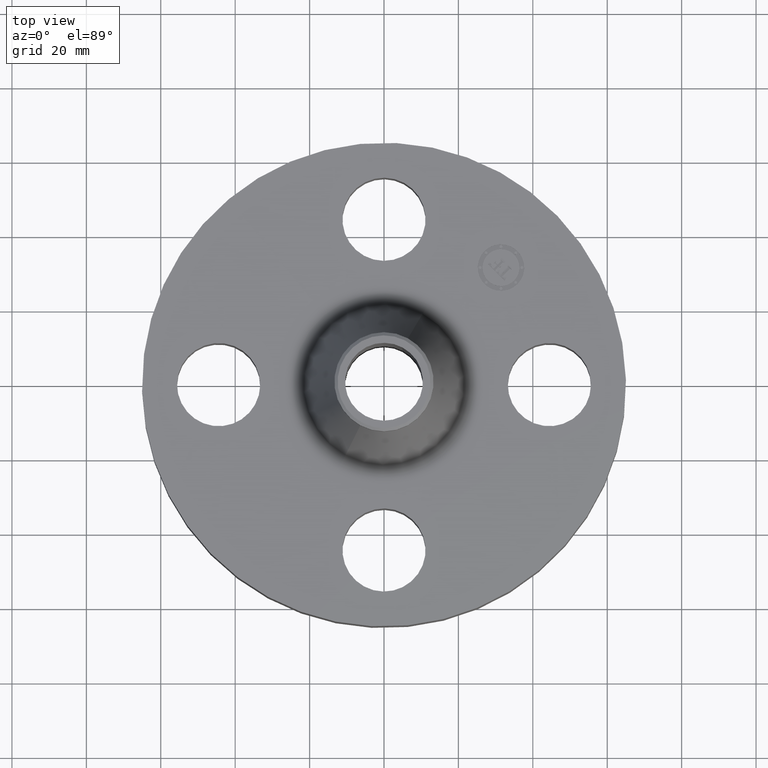
[diagram: clean part render]
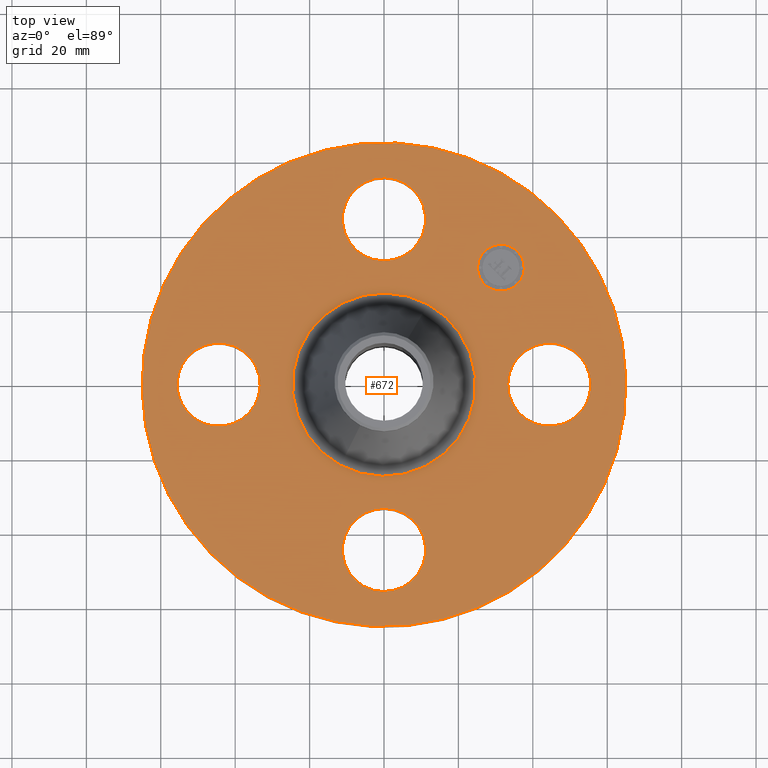
[diagram: same view with one face highlighted and labeled with its STEP entity id]
A machine part, top view. The second image highlights one B-rep face of the part: STEP entity #672.
In plain terms, the highlighted planar face has unit normal (0, 0, -1).
Its self-contained STEP definition (entity closure, byte-faithful):
#65=AXIS2_PLACEMENT_3D('Circle Axis2P3D',#63,#64,$) ;
#82=AXIS2_PLACEMENT_3D('Circle Axis2P3D',#80,#81,$) ;
#115=AXIS2_PLACEMENT_3D('Circle Axis2P3D',#113,#114,$) ;
#139=AXIS2_PLACEMENT_3D('Circle Axis2P3D',#137,#138,$) ;
#156=AXIS2_PLACEMENT_3D('Circle Axis2P3D',#154,#155,$) ;
#191=AXIS2_PLACEMENT_3D('Circle Axis2P3D',#189,#190,$) ;
#517=AXIS2_PLACEMENT_3D('Circle Axis2P3D',#515,#516,$) ;
#529=AXIS2_PLACEMENT_3D('Circle Axis2P3D',#527,#528,$) ;
#560=AXIS2_PLACEMENT_3D('Circle Axis2P3D',#558,#559,$) ;
#572=AXIS2_PLACEMENT_3D('Circle Axis2P3D',#570,#571,$) ;
#603=AXIS2_PLACEMENT_3D('Circle Axis2P3D',#601,#602,$) ;
#615=AXIS2_PLACEMENT_3D('Circle Axis2P3D',#613,#614,$) ;
#628=AXIS2_PLACEMENT_3D('Plane Axis2P3D',#625,#626,#627) ;
#656=AXIS2_PLACEMENT_3D('Circle Axis2P3D',#654,#655,$) ;
#665=AXIS2_PLACEMENT_3D('Circle Axis2P3D',#663,#664,$) ;
#46=CARTESIAN_POINT('Vertex',(1.36386367277,0.210947236987,1.)) ;
#60=CARTESIAN_POINT('Vertex',(2.13613632724,-0.210947236987,1.)) ;
#63=CARTESIAN_POINT('Axis2P3D Location',(1.75000000001,0.,1.)) ;
#80=CARTESIAN_POINT('Axis2P3D Location',(1.75000000001,0.,1.)) ;
#110=CARTESIAN_POINT('Vertex',(-1.22732937883,-2.24661135845,1.)) ;
#113=CARTESIAN_POINT('Axis2P3D Location',(0.,0.,1.)) ;
#117=CARTESIAN_POINT('Vertex',(1.22732937883,2.24661135845,1.)) ;
#137=CARTESIAN_POINT('Axis2P3D Location',(0.,0.,1.)) ;
#154=CARTESIAN_POINT('Axis2P3D Location',(0.,0.,1.)) ;
#158=CARTESIAN_POINT('Vertex',(0.465062729832,0.851291616784,1.)) ;
#160=CARTESIAN_POINT('Vertex',(-0.465062729832,-0.851291616784,1.)) ;
#189=CARTESIAN_POINT('Axis2P3D Location',(0.,0.,1.)) ;
#505=CARTESIAN_POINT('Vertex',(-0.210947236987,1.36386367277,1.)) ;
#512=CARTESIAN_POINT('Vertex',(0.210947236987,2.13613632724,1.)) ;
#515=CARTESIAN_POINT('Axis2P3D Location',(-3.21469784777E-016,1.75000000001,1.)) ;
#527=CARTESIAN_POINT('Axis2P3D Location',(-3.21469784777E-016,1.75000000001,1.)) ;
#548=CARTESIAN_POINT('Vertex',(-1.36386367277,-0.210947236987,1.)) ;
#555=CARTESIAN_POINT('Vertex',(-2.13613632724,0.210947236987,1.)) ;
#558=CARTESIAN_POINT('Axis2P3D Location',(-1.75000000001,-2.14313189852E-016,1.)) ;
#570=CARTESIAN_POINT('Axis2P3D Location',(-1.75000000001,-2.14313189852E-016,1.)) ;
#591=CARTESIAN_POINT('Vertex',(0.210947236987,-1.36386367277,1.)) ;
#598=CARTESIAN_POINT('Vertex',(-0.210947236987,-2.13613632724,1.)) ;
#601=CARTESIAN_POINT('Axis2P3D Location',(1.07156594926E-016,-1.75000000001,1.)) ;
#613=CARTESIAN_POINT('Axis2P3D Location',(1.07156594926E-016,-1.75000000001,1.)) ;
#625=CARTESIAN_POINT('Axis2P3D Location',(0.,2.56000000001,1.)) ;
#654=CARTESIAN_POINT('Axis2P3D Location',(1.23743686708,1.23743686708,1.)) ;
#658=CARTESIAN_POINT('Vertex',(1.06242793874,1.41244579543,1.)) ;
#660=CARTESIAN_POINT('Vertex',(1.41244579543,1.06242793874,1.)) ;
#663=CARTESIAN_POINT('Axis2P3D Location',(1.23743686708,1.23743686708,1.)) ;
#64=DIRECTION('Axis2P3D Direction',(0.,-0.,-0.0393700787402)) ;
#81=DIRECTION('Axis2P3D Direction',(0.,-0.,-0.0393700787402)) ;
#114=DIRECTION('Axis2P3D Direction',(0.,0.,-0.0393700787402)) ;
#138=DIRECTION('Axis2P3D Direction',(0.,0.,-0.0393700787402)) ;
#155=DIRECTION('Axis2P3D Direction',(0.,0.,-0.0393700787402)) ;
#190=DIRECTION('Axis2P3D Direction',(0.,0.,-0.0393700787402)) ;
#516=DIRECTION('Axis2P3D Direction',(0.,0.,-0.0393700787402)) ;
#528=DIRECTION('Axis2P3D Direction',(0.,0.,-0.0393700787402)) ;
#559=DIRECTION('Axis2P3D Direction',(-0.,0.,-0.0393700787402)) ;
#571=DIRECTION('Axis2P3D Direction',(-0.,0.,-0.0393700787402)) ;
#602=DIRECTION('Axis2P3D Direction',(0.,-0.,-0.0393700787402)) ;
#614=DIRECTION('Axis2P3D Direction',(0.,-0.,-0.0393700787402)) ;
#626=DIRECTION('Axis2P3D Direction',(0.,0.,-0.0393700787402)) ;
#627=DIRECTION('Axis2P3D XDirection',(0.0393700787402,0.,0.)) ;
#655=DIRECTION('Axis2P3D Direction',(0.,0.,-0.0393700787402)) ;
#664=DIRECTION('Axis2P3D Direction',(0.,0.,-0.0393700787402)) ;
#631=ORIENTED_EDGE('',*,*,#141,.F.) ;
#632=ORIENTED_EDGE('',*,*,#119,.F.) ;
#635=ORIENTED_EDGE('',*,*,#67,.T.) ;
#636=ORIENTED_EDGE('',*,*,#84,.T.) ;
#639=ORIENTED_EDGE('',*,*,#193,.T.) ;
#640=ORIENTED_EDGE('',*,*,#162,.T.) ;
#643=ORIENTED_EDGE('',*,*,#617,.T.) ;
#644=ORIENTED_EDGE('',*,*,#605,.T.) ;
#647=ORIENTED_EDGE('',*,*,#574,.T.) ;
#648=ORIENTED_EDGE('',*,*,#562,.T.) ;
#651=ORIENTED_EDGE('',*,*,#531,.T.) ;
#652=ORIENTED_EDGE('',*,*,#519,.T.) ;
#669=ORIENTED_EDGE('',*,*,#662,.T.) ;
#670=ORIENTED_EDGE('',*,*,#667,.T.) ;
#637=FACE_BOUND('',#634,.T.) ;
#641=FACE_BOUND('',#638,.T.) ;
#645=FACE_BOUND('',#642,.T.) ;
#649=FACE_BOUND('',#646,.T.) ;
#653=FACE_BOUND('',#650,.T.) ;
#671=FACE_BOUND('',#668,.T.) ;
#672=ADVANCED_FACE('PartBody',(#633,#637,#641,#645,#649,#653,#671),#629,.F.) ;
#66=CIRCLE('generated circle',#65,0.440000000002) ;
#83=CIRCLE('generated circle',#82,0.440000000002) ;
#116=CIRCLE('generated circle',#115,2.56000000001) ;
#140=CIRCLE('generated circle',#139,2.56000000001) ;
#157=CIRCLE('generated circle',#156,0.970041627708) ;
#192=CIRCLE('generated circle',#191,0.970041627708) ;
#518=CIRCLE('generated circle',#517,0.440000000002) ;
#530=CIRCLE('generated circle',#529,0.440000000002) ;
#561=CIRCLE('generated circle',#560,0.440000000002) ;
#573=CIRCLE('generated circle',#572,0.440000000002) ;
#604=CIRCLE('generated circle',#603,0.440000000002) ;
#616=CIRCLE('generated circle',#615,0.440000000002) ;
#657=CIRCLE('generated circle',#656,0.247500000001) ;
#666=CIRCLE('generated circle',#665,0.247500000001) ;
#67=EDGE_CURVE('',#47,#61,#66,.T.) ;
#84=EDGE_CURVE('',#61,#47,#83,.T.) ;
#119=EDGE_CURVE('',#111,#118,#116,.T.) ;
#141=EDGE_CURVE('',#118,#111,#140,.T.) ;
#162=EDGE_CURVE('',#159,#161,#157,.T.) ;
#193=EDGE_CURVE('',#161,#159,#192,.T.) ;
#519=EDGE_CURVE('',#506,#513,#518,.T.) ;
#531=EDGE_CURVE('',#513,#506,#530,.T.) ;
#562=EDGE_CURVE('',#549,#556,#561,.T.) ;
#574=EDGE_CURVE('',#556,#549,#573,.T.) ;
#605=EDGE_CURVE('',#592,#599,#604,.T.) ;
#617=EDGE_CURVE('',#599,#592,#616,.T.) ;
#662=EDGE_CURVE('',#659,#661,#657,.T.) ;
#667=EDGE_CURVE('',#661,#659,#666,.T.) ;
#630=EDGE_LOOP('',(#631,#632)) ;
#634=EDGE_LOOP('',(#635,#636)) ;
#638=EDGE_LOOP('',(#639,#640)) ;
#642=EDGE_LOOP('',(#643,#644)) ;
#646=EDGE_LOOP('',(#647,#648)) ;
#650=EDGE_LOOP('',(#651,#652)) ;
#668=EDGE_LOOP('',(#669,#670)) ;
#633=FACE_OUTER_BOUND('',#630,.T.) ;
#629=PLANE('',#628) ;
#47=VERTEX_POINT('',#46) ;
#61=VERTEX_POINT('',#60) ;
#111=VERTEX_POINT('',#110) ;
#118=VERTEX_POINT('',#117) ;
#159=VERTEX_POINT('',#158) ;
#161=VERTEX_POINT('',#160) ;
#506=VERTEX_POINT('',#505) ;
#513=VERTEX_POINT('',#512) ;
#549=VERTEX_POINT('',#548) ;
#556=VERTEX_POINT('',#555) ;
#592=VERTEX_POINT('',#591) ;
#599=VERTEX_POINT('',#598) ;
#659=VERTEX_POINT('',#658) ;
#661=VERTEX_POINT('',#660) ;